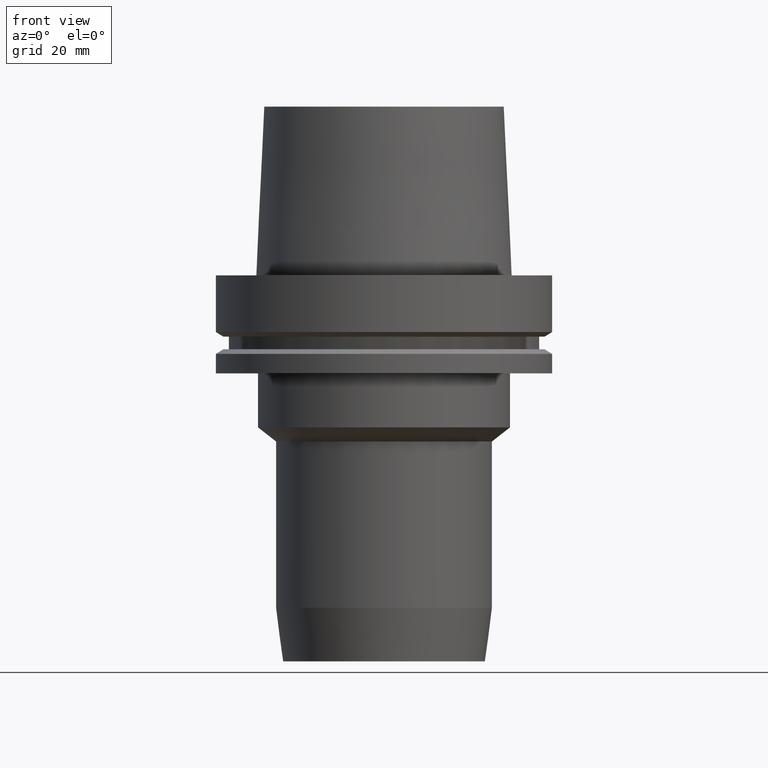
[diagram: clean part render]
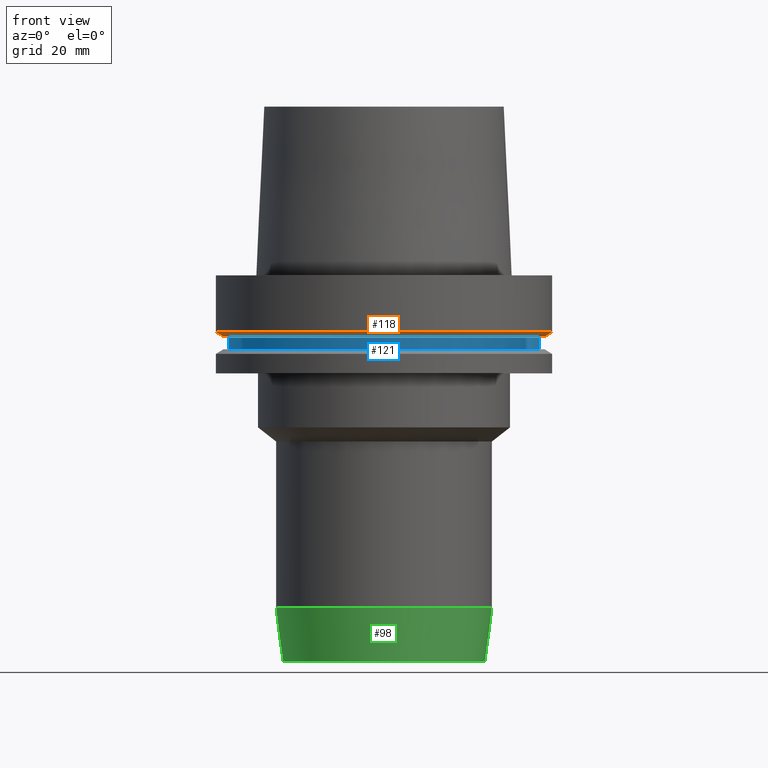
[diagram: same view with three faces highlighted in distinct colors, each labeled with its STEP entity id]
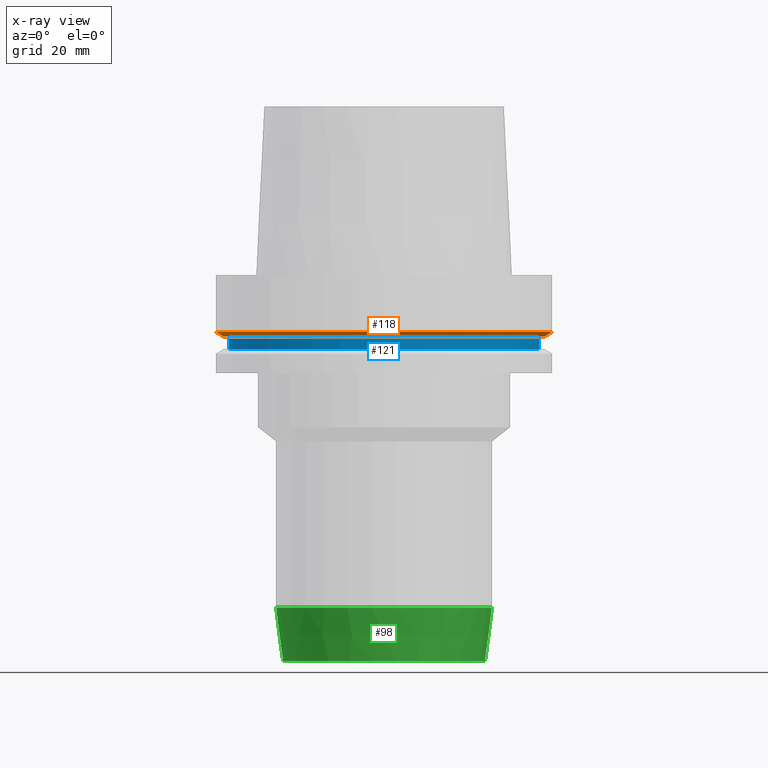
[diagram: x-ray of the same camera — body ghosted, the three highlighted faces saturated]
A machine part, front view with three faces highlighted in distinct colors.
The next image is the same camera in x-ray (body ghosted, the three faces saturated) — at least one of them is partly hidden behind the body in this view.
Their STEP definitions:

[orange] entity #118 — the highlighted conical surface has half-angle 60 deg.
#100=EDGE_CURVE('Unnamed[1]',#221,#221,#222,.T.);
#106=EDGE_CURVE('Unnamed[1]',#230,#230,#231,.T.);
#118=ADVANCED_FACE('Unnamed[1]',(#248,#249),#250,.T.);
#221=VERTEX_POINT('',#369);
#222=CIRCLE('',#370,47.62259526);
#230=VERTEX_POINT('',#381);
#231=CIRCLE('',#382,50.0);
#248=FACE_BOUND('',#404,.T.);
#249=FACE_BOUND('',#405,.T.);
#250=CONICAL_SURFACE('',#406,48.81129763,1.04719755328238);
#369=CARTESIAN_POINT('',(1.10983616172729E-015,47.62259526,-18.125));
#370=AXIS2_PLACEMENT_3D('',#519,#520,#521);
#381=CARTESIAN_POINT('',(1.0257889421431E-015,50.0,-16.75240474));
#382=AXIS2_PLACEMENT_3D('',#528,#529,#530);
#404=EDGE_LOOP('',(#547));
#405=EDGE_LOOP('',(#548));
#406=AXIS2_PLACEMENT_3D('',#549,#550,#551);
#519=CARTESIAN_POINT('',(1.10983616172729E-015,2.21967232345458E-015,-18.125));
#520=DIRECTION('',(6.12323399573676E-017,1.22464679914735E-016,-1.0));
#521=DIRECTION('',(-1.23259516440783E-032,1.0,1.22464679914735E-016));
#528=CARTESIAN_POINT('',(1.0257889421431E-015,2.05157788428619E-015,-16.75240474));
#529=DIRECTION('',(6.12323399573677E-017,1.22464679914735E-016,-1.0));
#530=DIRECTION('',(-1.23259516440783E-032,1.0,1.22464679914735E-016));
#547=ORIENTED_EDGE('',*,*,#100,.F.);
#548=ORIENTED_EDGE('',*,*,#106,.T.);
#549=CARTESIAN_POINT('',(1.06781255193519E-015,2.13562510387038E-015,-17.43870237));
#550=DIRECTION('',(-6.12323399573677E-017,-1.22464679914735E-016,1.0));
#551=DIRECTION('',(-1.23259516440783E-032,1.0,1.22464679914735E-016));

[blue] entity #121 — the highlighted cylindrical surface (bore or boss wall) has radius 46 mm, axis along (0, 0, -1).
#115=EDGE_CURVE('Unnamed[1]',#244,#244,#245,.T.);
#121=ADVANCED_FACE('Unnamed[1]',(#253,#254),#255,.T.);
#130=EDGE_CURVE('Unnamed[1]',#268,#268,#269,.T.);
#244=VERTEX_POINT('',#399);
#245=CIRCLE('',#400,46.0);
#253=FACE_BOUND('',#410,.T.);
#254=FACE_BOUND('',#411,.T.);
#255=CYLINDRICAL_SURFACE('',#412,46.0);
#268=VERTEX_POINT('',#429);
#269=CIRCLE('',#430,46.0);
#399=CARTESIAN_POINT('',(1.33945743656742E-015,46.0,-21.875));
#400=AXIS2_PLACEMENT_3D('',#543,#544,#545);
#410=EDGE_LOOP('',(#553));
#411=EDGE_LOOP('',(#554));
#412=AXIS2_PLACEMENT_3D('',#555,#556,#557);
#429=CARTESIAN_POINT('',(1.10983616172729E-015,46.0,-18.125));
#430=AXIS2_PLACEMENT_3D('',#570,#571,#572);
#543=CARTESIAN_POINT('',(1.33945743656742E-015,2.67891487313484E-015,-21.875));
#544=DIRECTION('',(6.12323399573677E-017,1.22464679914735E-016,-1.0));
#545=DIRECTION('',(-1.23259516440783E-032,1.0,1.22464679914735E-016));
#553=ORIENTED_EDGE('',*,*,#115,.F.);
#554=ORIENTED_EDGE('',*,*,#130,.T.);
#555=CARTESIAN_POINT('',(1.22464679914735E-015,2.44929359829471E-015,-20.0));
#556=DIRECTION('',(6.12323399573677E-017,1.22464679914735E-016,-1.0));
#557=DIRECTION('',(-1.23259516440783E-032,1.0,1.22464679914735E-016));
#570=CARTESIAN_POINT('',(1.10983616172729E-015,2.21967232345458E-015,-18.125));
#571=DIRECTION('',(6.12323399573677E-017,1.22464679914735E-016,-1.0));
#572=DIRECTION('',(-1.23259516440783E-032,1.0,1.22464679914735E-016));

[green] entity #98 — the highlighted conical surface has half-angle 7.5 deg.
#98=ADVANCED_FACE('Unnamed[1]',(#217,#218),#219,.T.);
#108=EDGE_CURVE('Unnamed[1]',#233,#233,#234,.T.);
#132=EDGE_CURVE('Unnamed[1]',#271,#271,#272,.T.);
#217=FACE_BOUND('',#364,.T.);
#218=FACE_BOUND('',#365,.T.);
#219=CONICAL_SURFACE('',#366,30.9539216258389,0.130899693899573);
#233=VERTEX_POINT('',#385);
#234=CIRCLE('',#386,31.9999999999891);
#271=VERTEX_POINT('',#433);
#272=CIRCLE('',#434,29.9078432516888);
#364=EDGE_LOOP('',(#514));
#365=EDGE_LOOP('',(#515));
#366=AXIS2_PLACEMENT_3D('',#516,#517,#518);
#385=CARTESIAN_POINT('',(6.0257822230361E-015,31.9999999999891,-98.4084917746322));
#386=AXIS2_PLACEMENT_3D('',#531,#532,#533);
#433=CARTESIAN_POINT('',(6.99885645712709E-015,29.9078432516888,-114.3));
#434=AXIS2_PLACEMENT_3D('',#573,#574,#575);
#514=ORIENTED_EDGE('',*,*,#132,.F.);
#515=ORIENTED_EDGE('',*,*,#108,.T.);
#516=CARTESIAN_POINT('',(6.5123193400816E-015,1.30246386801632E-014,-106.354245887316));
#517=DIRECTION('',(-6.12323399573677E-017,-1.22464679914735E-016,1.0));
#518=DIRECTION('',(-1.23259516440783E-032,1.0,1.22464679914735E-016));
#531=CARTESIAN_POINT('',(6.0257822230361E-015,1.20515644460722E-014,-98.4084917746322));
#532=DIRECTION('',(6.12323399573677E-017,1.22464679914735E-016,-1.0));
#533=DIRECTION('',(-1.23259516440783E-032,1.0,1.22464679914735E-016));
#573=CARTESIAN_POINT('',(6.99885645712709E-015,1.39977129142542E-014,-114.3));
#574=DIRECTION('',(6.12323399573677E-017,1.22464679914735E-016,-1.0));
#575=DIRECTION('',(-1.23259516440783E-032,1.0,1.22464679914735E-016));